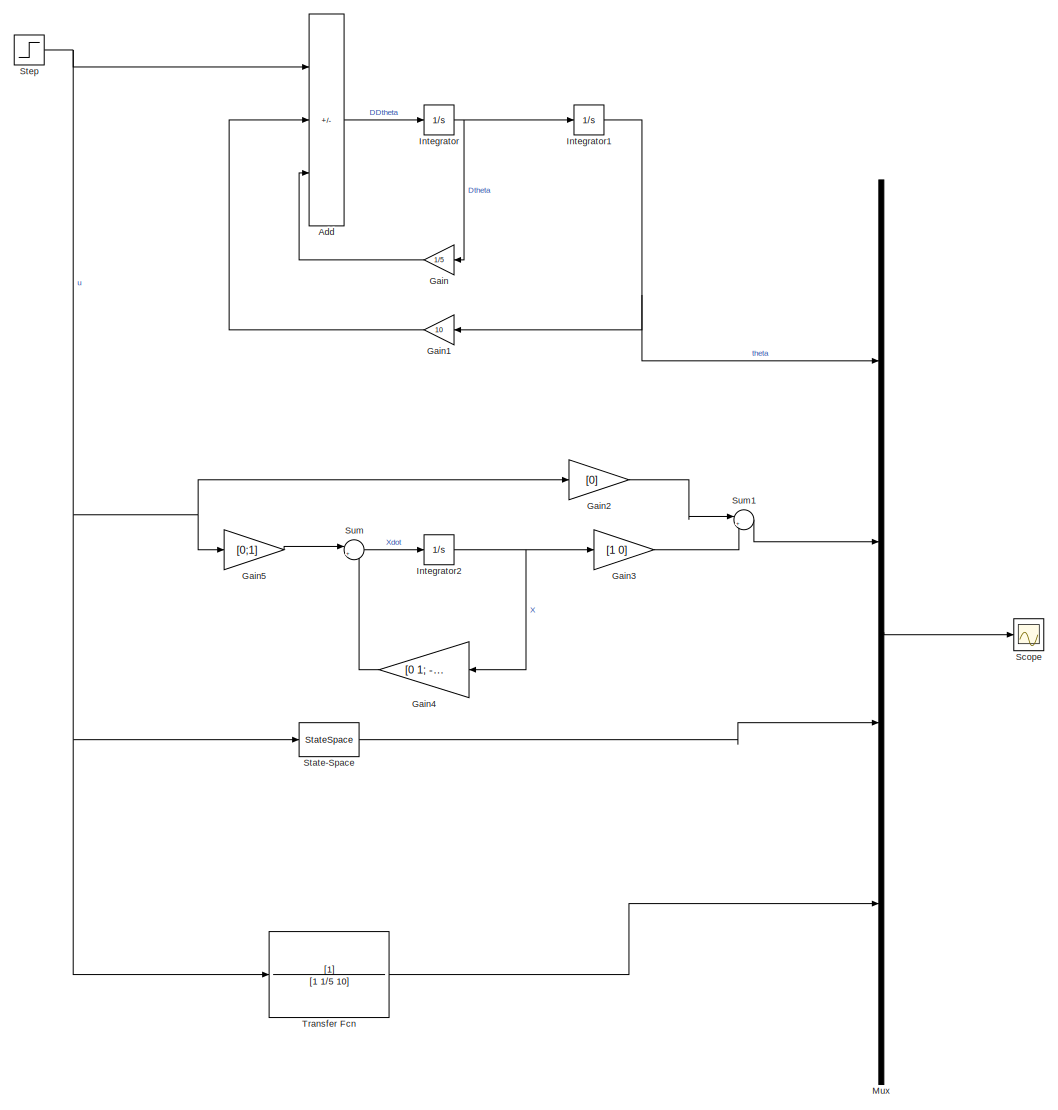
[diagram: root canvas - part 1/1, most of the canvas]
MODEL slx_dfb369a65c04
KIND model
CONFIG AbsTol = auto
CONFIG EnableMultiTasking = off
CONFIG FixedStep = auto
CONFIG MaxStep = auto
CONFIG MinStep = auto
CONFIG RelTol = 1e-3
CONFIG SampleTimeConstraint = Unconstrained
CONFIG Solver = VariableStepAuto
CONFIG SolverName = VariableStepAuto
CONFIG StartTime = 0.0
CONFIG StopTime = 30
BLOCK [Sum] Add
  IconShape = rectangular
  Inputs = +--
  Ports = [3, 1]
BLOCK [Gain] Gain
  Gain = 1/5
  NameLocation = top
BLOCK [Gain] Gain1
  Gain = 10
  NameLocation = top
BLOCK [Gain] Gain2
  Gain = [0]
  Multiplication = Matrix(K*u)
BLOCK [Gain] Gain3
  Gain = [1 0]
  Multiplication = Matrix(K*u)
BLOCK [Gain] Gain4
  Gain = [0 1; -10 -1/5]
  Multiplication = Matrix(K*u)
  NameLocation = top
BLOCK [Gain] Gain5
  Gain = [0;1]
  Multiplication = Matrix(K*u)
BLOCK [Integrator] Integrator
  Ports = [1, 1]
BLOCK [Integrator] Integrator1
  Ports = [1, 1]
BLOCK [Integrator] Integrator2
  Ports = [1, 1]
BLOCK [Mux] Mux
  DisplayOption = bar
  Ports = [4, 1]
BLOCK [Scope] Scope
  Floating = off
  NumInputPorts = 1
  Ports = [1]
  ScopeSpecificationString = Simulink.scopes.TimeScopeBlockCfg('CurrentConfiguration', extmgr.ConfigurationSet(extmgr.Configuration('Core','General UI',true),extmgr.Configuration('Core','Source UI',true),extmgr.Configuration('Sources','WiredSimulink',true),extmgr.Configuration('Visuals','Time Domain',true,'SerializedDisplays',{struct('MinYLimReal','-0.02342','MaxYLimReal','0.21078','YLabelReal','','MinYLimMag','0.00000','MaxY...<+1516ch>
BLOCK [StateSpace] State-Space
  A = [0 1; -10 -1/5]
  B = [0;1]
  C = [1 0]
  D = [0]
  InitialCondition = 0
  Ports = [1, 1]
BLOCK [Step] Step
  SampleTime = 0
  Time = 3
BLOCK [Sum] Sum
  Inputs = |++
  Ports = [2, 1]
BLOCK [Sum] Sum1
  Inputs = |++
  Ports = [2, 1]
BLOCK [TransferFcn] Transfer Fcn
  Denominator = [1 1/5 10]
LINE Add:1 -> Integrator:1
LINE Gain1:1 -> Add:2
LINE Gain2:1 -> Sum1:1
LINE Gain3:1 -> Sum1:2
LINE Gain4:1 -> Sum:2
LINE Gain5:1 -> Sum:1
LINE Gain:1 -> Add:3
NET Integrator1:1 -> Gain1:1, Mux:1
NET Integrator2:1 -> Gain3:1, Gain4:1
NET Integrator:1 -> Gain:1, Integrator1:1
LINE Mux:1 -> Scope:1
LINE State-Space:1 -> Mux:3
NET Step:1 -> Add:1, Gain2:1, Gain5:1, State-Space:1, Transfer Fcn:1
LINE Sum1:1 -> Mux:2
LINE Sum:1 -> Integrator2:1
LINE Transfer Fcn:1 -> Mux:4
note: NET lines group one-source signal fan-out (src -> all destinations, sorted); 1:1 wires keep LINE
